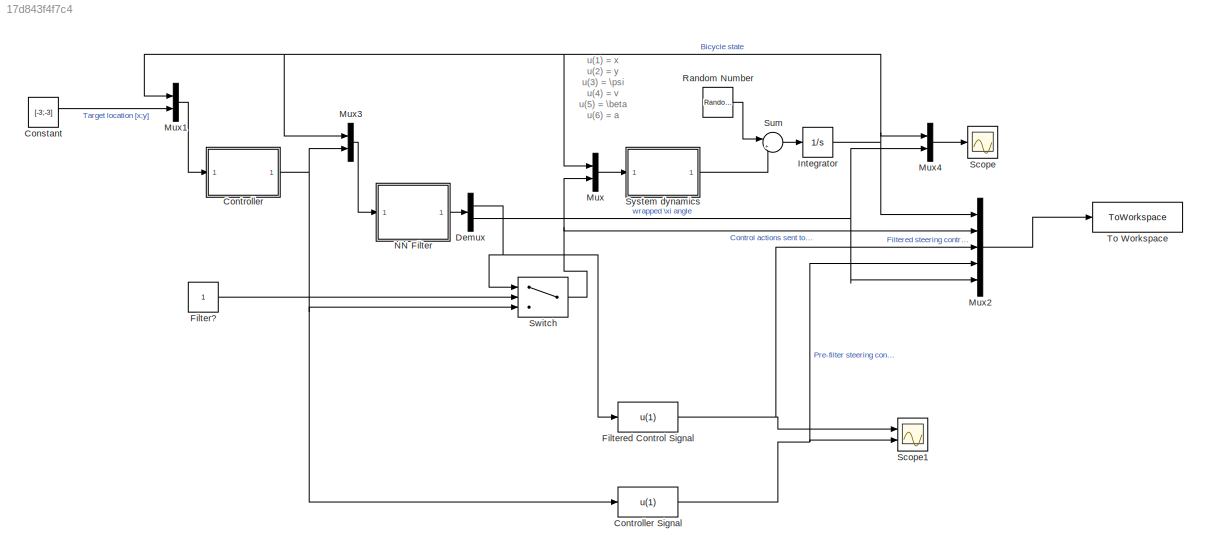
MODEL slx_17d843f4f7c4
KIND model
CONFIG AbsTol = auto
CONFIG EnableMultiTasking = off
CONFIG FixedStep = auto
CONFIG MaxStep = 1e-3
CONFIG MinStep = auto
CONFIG RelTol = 1e-3
CONFIG SampleTimeConstraint = Unconstrained
CONFIG Solver = VariableStepAuto
CONFIG SolverName = VariableStepAuto
CONFIG StartTime = 0.0
CONFIG StopTime = 2
BLOCK [Constant] Constant
  Value = [-3;-3]
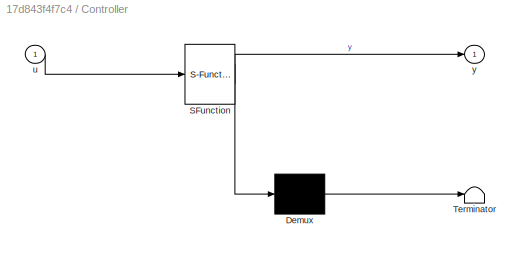
BLOCK [SubSystem] Controller
  ErrorFcn = Stateflow.Translate.translate
  PermitHierarchicalResolution = ExplicitOnly
  Ports = [1, 1]
  RequestExecContextInheritance = off
  SFBlockType = MATLAB Function
  TreatAsAtomicUnit = on
BLOCK [Fcn] Controller Signal
  Expr = u(1)
BLOCK [Demux] Controller/ Demux 
  Outputs = 1
  Ports = [1, 1]
BLOCK [S-Function] Controller/ SFunction 
  EnableBusSupport = on
  FunctionName = sf_sfun
  PortCounts = [1 2]
  Ports = [1, 2]
  SFcnIsStateOwnerBlock = off
  SFunctionDeploymentMode = off
  Tag = Stateflow S-Function 1
BLOCK [Terminator] Controller/ Terminator 
BLOCK [Inport] Controller/u
BLOCK [Outport] Controller/y
BLOCK [Demux] Demux
  Outputs = [2;1]
  Ports = [1, 2]
BLOCK [Constant] Filter?
BLOCK [Fcn] Filtered Control Signal
  Expr = u(1)
BLOCK [Integrator] Integrator
  InitialCondition = [2;2;2.5*pi/3;3]
  Ports = [1, 1]
BLOCK [Mux] Mux
  DisplayOption = bar
  Inputs = [4;2]
  Ports = [2, 1]
BLOCK [Mux] Mux1
  DisplayOption = bar
  Inputs = [4;2]
  Ports = [2, 1]
BLOCK [Mux] Mux2
  DisplayOption = bar
  Inputs = [4;2;1;1;1]
  Ports = [5, 1]
BLOCK [Mux] Mux3
  DisplayOption = bar
  Inputs = [4;2]
  Ports = [2, 1]
BLOCK [Mux] Mux4
  DisplayOption = bar
  Inputs = 2
  Ports = [2, 1]
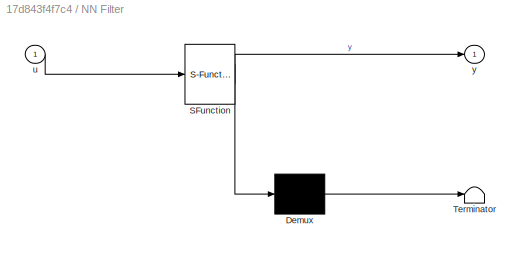
BLOCK [SubSystem] NN Filter
  ErrorFcn = Stateflow.Translate.translate
  PermitHierarchicalResolution = ExplicitOnly
  Ports = [1, 1]
  RequestExecContextInheritance = off
  SFBlockType = MATLAB Function
  TreatAsAtomicUnit = on
BLOCK [Demux] NN Filter/ Demux 
  Outputs = 1
  Ports = [1, 1]
BLOCK [S-Function] NN Filter/ SFunction 
  EnableBusSupport = on
  FunctionName = sf_sfun
  PortCounts = [1 2]
  Ports = [1, 2]
  SFcnIsStateOwnerBlock = off
  SFunctionDeploymentMode = off
  Tag = Stateflow S-Function 3
BLOCK [Terminator] NN Filter/ Terminator 
BLOCK [Inport] NN Filter/u
BLOCK [Outport] NN Filter/y
BLOCK [RandomNumber] Random Number
  Mean = [0;0;0;0]
  SampleTime = 0.001
  Variance = [0;0;0;0]
BLOCK [Scope] Scope
  Floating = off
  NumInputPorts = 1
  Ports = [1]
  ScopeSpecificationString = Simulink.scopes.TimeScopeBlockCfg('CurrentConfiguration', extmgr.ConfigurationSet(extmgr.Configuration('Core','General UI',true),extmgr.Configuration('Core','Source UI',true),extmgr.Configuration('Sources','WiredSimulink',true),extmgr.Configuration('Visuals','Time Domain',true,'SerializedDisplays',{struct('MinYLimReal','-3.33794','MaxYLimReal','5.39187','YLabelReal','','MinYLimMag','0.00000','MaxY...<+1439ch>
BLOCK [Scope] Scope1
  Floating = off
  NumInputPorts = 2
  Ports = [2]
  ScopeSpecificationString = Simulink.scopes.TimeScopeBlockCfg('CurrentConfiguration', extmgr.ConfigurationSet(extmgr.Configuration('Core','General UI',true),extmgr.Configuration('Core','Source UI',true),extmgr.Configuration('Sources','WiredSimulink',true,'DataLoggingVariableName','ScopeData1'),extmgr.Configuration('Visuals','Time Domain',true,'SerializedDisplays',{struct('MinYLimReal','-0.57837','MaxYLimReal','0.56884','YLab...<+1681ch>
BLOCK [Sum] Sum
  Inputs = |++
  Ports = [2, 1]
BLOCK [Switch] Switch
  Criteria = u2 > Threshold
  InputSameDT = off
  SaturateOnIntegerOverflow = off
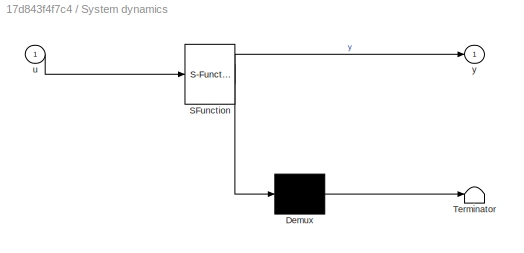
BLOCK [SubSystem] System dynamics
  ErrorFcn = Stateflow.Translate.translate
  PermitHierarchicalResolution = ExplicitOnly
  Ports = [1, 1]
  RequestExecContextInheritance = off
  SFBlockType = MATLAB Function
  TreatAsAtomicUnit = on
BLOCK [Demux] System dynamics/ Demux 
  Outputs = 1
  Ports = [1, 1]
BLOCK [S-Function] System dynamics/ SFunction 
  EnableBusSupport = on
  FunctionName = sf_sfun
  PortCounts = [1 2]
  Ports = [1, 2]
  SFcnIsStateOwnerBlock = off
  SFunctionDeploymentMode = off
  Tag = Stateflow S-Function 2
BLOCK [Terminator] System dynamics/ Terminator 
BLOCK [Inport] System dynamics/u
BLOCK [Outport] System dynamics/y
BLOCK [ToWorkspace] To Workspace
  FixptAsFi = on
  MaxDataPoints = inf
  Ports = [1]
  SampleTime = -1
  SaveFormat = Timeseries
  VariableName = simout
ANNOTATION (root): u(1) = x u(2) = y u(3) = \psi u(4) = v u(5) = \beta u(6) = a
LINE Constant:1 -> Mux1:2
NET Controller Signal:1 -> Mux2:4, Scope1:2
NET Controller:1 -> Controller Signal:1, Mux3:2, Switch:3
NET Demux:1 -> Filtered Control Signal:1, Switch:1
NET Demux:2 -> Mux2:5, Mux4:2
LINE Filter?:1 -> Switch:2
NET Filtered Control Signal:1 -> Mux2:3, Scope1:1
NET Integrator:1 -> Mux1:1, Mux2:1, Mux3:1, Mux4:1, Mux:1
LINE Mux1:1 -> Controller:1
LINE Mux2:1 -> To Workspace:1
LINE Mux3:1 -> NN Filter:1
LINE Mux4:1 -> Scope:1
LINE Mux:1 -> System dynamics:1
LINE NN Filter:1 -> Demux:1
LINE Random Number:1 -> Sum:1
LINE Sum:1 -> Integrator:1
NET Switch:1 -> Mux2:2, Mux:2
LINE System dynamics:1 -> Sum:2
note: NET lines group one-source signal fan-out (src -> all destinations, sorted); 1:1 wires keep LINE
CHART Controller states=1 transitions=1
  STATE_LABEL 'eML_blk_kernel()'
  STATE_LABEL 'SCRIPT:\nfunction y = fcn(u)\n\n% u(1) = x\n% u(2) = y\n% u(3) = \\psi\n% u(4) = v\n% u(5) = target location x\n% u(6) = target location y\n\n% targetAngle = atan2((-u(6)+u(2)),(-u(5)+u(1)));\n% \n% if targetAngle >= 0 && targetAngle <= pi/2\n%     targetAngle = -pi+targetAngle;    \n% elseif targetAngle > pi/2 && targetAngle <= pi\n%     targetAngle = -targetAngle;\n% elseif targetAngle < 0 && targetAngle >= -pi/...<+1108ch>'
CHART System dynamics states=1 transitions=1
  STATE_LABEL 'eML_blk_kernel()'
  STATE_LABEL 'SCRIPT:\nfunction y = fcn(u)\n\ny = [u(4)*cos(u(3)+u(5)); u(4)*sin(u(3)+u(5)); (1/0.23)*u(4)*sin(u(5));u(6)];\n'
CHART NN Filter states=1 transitions=1
  STATE_LABEL 'eML_blk_kernel()'
  STATE_LABEL "SCRIPT:\nfunction y = fcn(u)\n\n% ============================ !! IMPORTANT !! ============================\n% 'THRESH.M' ***MUST*** BE IN THE MATLAB PATH OR THE CURRENT FOLDER BEFORE\n% RUNNING THIS MODEL!!\n% =========================================================================\n\n\n% 'coder.extern' tells simulink that 'thresh1' and 'thresh2' are external \n% functions, and should be handled by the MA...<+1712ch>"
CHART  states=0 transitions=0
CHART  states=0 transitions=0
CHART  states=0 transitions=0
